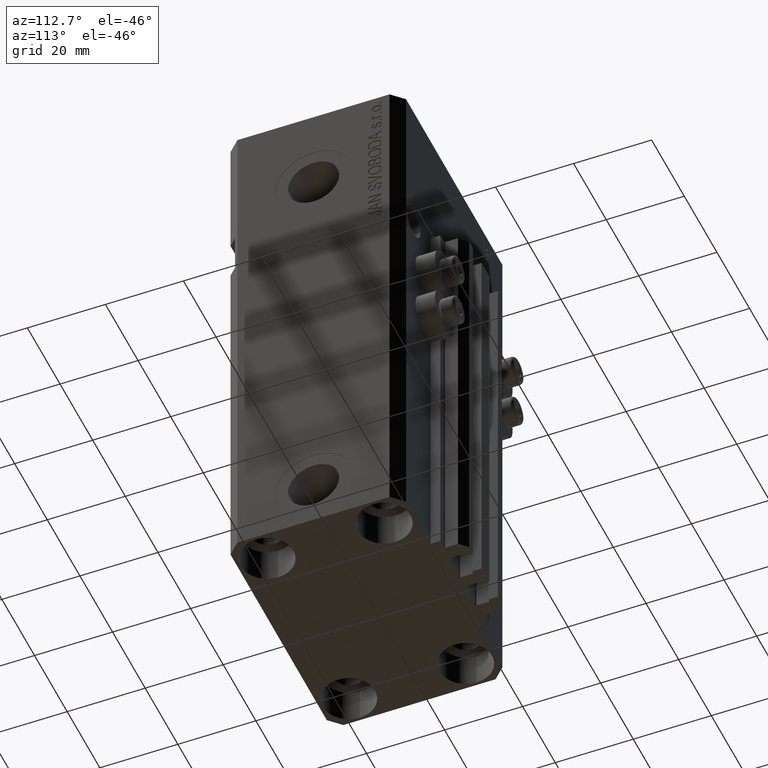
[diagram: clean part render]
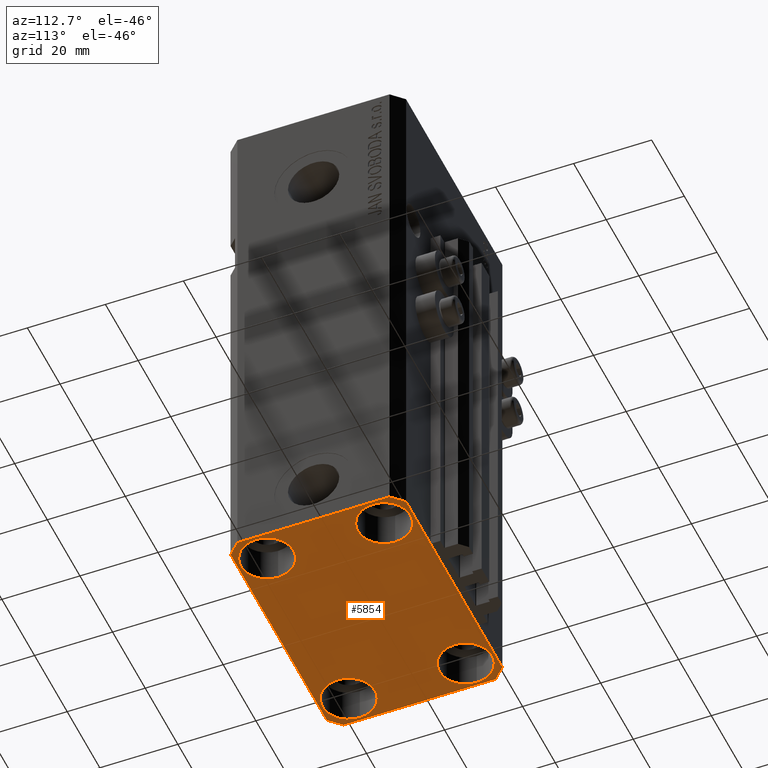
[diagram: same view with one face highlighted and labeled with its STEP entity id]
A machine part, auxiliary view. The second image highlights one B-rep face of the part: STEP entity #5854.
In plain terms, the highlighted planar face has unit normal (0, 0, 1).
Its self-contained STEP definition (entity closure, byte-faithful):
#63 = ORIENTED_EDGE ( 'NONE', *, *, #4565, .T. ) ;
#186 = LINE ( 'NONE', #22371, #3072 ) ;
#311 = ORIENTED_EDGE ( 'NONE', *, *, #10546, .F. ) ;
#1144 = EDGE_CURVE ( 'NONE', #42464, #1572, #2506, .T. ) ;
#1404 = CARTESIAN_POINT ( 'NONE',  ( 29.49999999999707967, 22.49999999999951328, -137.0000000000000000 ) ) ;
#1572 = VERTEX_POINT ( 'NONE', #8188 ) ;
#2083 = LINE ( 'NONE', #12599, #12634 ) ;
#2506 = CIRCLE ( 'NONE', #10928, 6.749999999958452790 ) ;
#2575 = CARTESIAN_POINT ( 'NONE',  ( -18.24999999995845812, -15.00000000000000000, -137.0000000000000000 ) ) ;
#2744 = CIRCLE ( 'NONE', #29399, 6.750000000022533087 ) ;
#3072 = VECTOR ( 'NONE', #33588, 1000.000000000000114 ) ;
#3112 = EDGE_CURVE ( 'NONE', #27843, #11203, #43400, .T. ) ;
#3386 = AXIS2_PLACEMENT_3D ( 'NONE', #13101, #16213, #27172 ) ;
#3497 = VERTEX_POINT ( 'NONE', #5614 ) ;
#3846 = EDGE_CURVE ( 'NONE', #42587, #45817, #27629, .T. ) ;
#4565 = EDGE_CURVE ( 'NONE', #10661, #19169, #18626, .T. ) ;
#4958 = DIRECTION ( 'NONE',  ( -0.7071067811865474617, -0.7071067811865474617, 0.000000000000000000 ) ) ;
#5001 = AXIS2_PLACEMENT_3D ( 'NONE', #6357, #21151, #35702 ) ;
#5074 = CARTESIAN_POINT ( 'NONE',  ( -32.49999999999650413, -19.49999999999949907, -137.0000000000000000 ) ) ;
#5438 = DIRECTION ( 'NONE',  ( -0.000000000000000000, -0.000000000000000000, 1.000000000000000000 ) ) ;
#5593 = DIRECTION ( 'NONE',  ( 1.000000000000000000, 0.000000000000000000, 0.000000000000000000 ) ) ;
#5614 = CARTESIAN_POINT ( 'NONE',  ( -29.49999999999650413, 22.49999999999949907, -137.0000000000000000 ) ) ;
#5821 = CARTESIAN_POINT ( 'NONE',  ( -25.00000000000000355, 15.00000000000000000, -137.0000000000000000 ) ) ;
#5854 = ADVANCED_FACE ( 'NONE', ( #10885, #46220, #28067, #24484, #39050 ), #42866, .F. ) ;
#5982 = AXIS2_PLACEMENT_3D ( 'NONE', #5821, #16099, #23481 ) ;
#6033 = EDGE_CURVE ( 'NONE', #1572, #42464, #18694, .T. ) ;
#6093 = ORIENTED_EDGE ( 'NONE', *, *, #6033, .T. ) ;
#6357 = CARTESIAN_POINT ( 'NONE',  ( 0.000000000000000000, 0.000000000000000000, -137.0000000000000000 ) ) ;
#7888 = EDGE_CURVE ( 'NONE', #13362, #3497, #15232, .T. ) ;
#8188 = CARTESIAN_POINT ( 'NONE',  ( 31.74999999995845101, 15.00000000000000888, -137.0000000000000000 ) ) ;
#8381 = VERTEX_POINT ( 'NONE', #35656 ) ;
#8545 = DIRECTION ( 'NONE',  ( -1.000000000000000000, -2.352167425053553784E-16, 0.000000000000000000 ) ) ;
#8798 = DIRECTION ( 'NONE',  ( -0.7071067811865352493, 0.7071067811865597852, 0.000000000000000000 ) ) ;
#8881 = EDGE_CURVE ( 'NONE', #19169, #10661, #19404, .T. ) ;
#9469 = CARTESIAN_POINT ( 'NONE',  ( 32.49999999999651124, -19.49999999999949196, -137.0000000000000000 ) ) ;
#9513 = DIRECTION ( 'NONE',  ( 0.000000000000000000, -1.000000000000000000, 0.000000000000000000 ) ) ;
#10288 = ORIENTED_EDGE ( 'NONE', *, *, #7888, .F. ) ;
#10306 = CARTESIAN_POINT ( 'NONE',  ( 18.25000000002253842, -15.00000000000000000, -137.0000000000000000 ) ) ;
#10546 = EDGE_CURVE ( 'NONE', #3497, #42587, #2083, .T. ) ;
#10661 = VERTEX_POINT ( 'NONE', #14463 ) ;
#10708 = CIRCLE ( 'NONE', #22100, 6.750000000041541881 ) ;
#10820 = ORIENTED_EDGE ( 'NONE', *, *, #45563, .T. ) ;
#10885 = FACE_BOUND ( 'NONE', #14953, .T. ) ;
#10928 = AXIS2_PLACEMENT_3D ( 'NONE', #46674, #21147, #35466 ) ;
#11203 = VERTEX_POINT ( 'NONE', #13655 ) ;
#11617 = EDGE_CURVE ( 'NONE', #30546, #30015, #2744, .T. ) ;
#12599 = CARTESIAN_POINT ( 'NONE',  ( -29.49999999999650413, 22.49999999999949907, -137.0000000000000000 ) ) ;
#12634 = VECTOR ( 'NONE', #4958, 1000.000000000000114 ) ;
#13101 = CARTESIAN_POINT ( 'NONE',  ( 25.00000000000000355, -15.00000000000000000, -137.0000000000000000 ) ) ;
#13113 = LINE ( 'NONE', #14988, #34322 ) ;
#13362 = VERTEX_POINT ( 'NONE', #1404 ) ;
#13511 = VERTEX_POINT ( 'NONE', #2575 ) ;
#13655 = CARTESIAN_POINT ( 'NONE',  ( 29.49999999999650413, -22.49999999999949196, -137.0000000000000000 ) ) ;
#14463 = CARTESIAN_POINT ( 'NONE',  ( 31.74999999997746869, -15.00000000000000000, -137.0000000000000000 ) ) ;
#14953 = EDGE_LOOP ( 'NONE', ( #10820, #33229 ) ) ;
#14988 = CARTESIAN_POINT ( 'NONE',  ( 29.49999999999650413, -22.49999999999949196, -137.0000000000000000 ) ) ;
#15232 = LINE ( 'NONE', #44575, #30908 ) ;
#15646 = VECTOR ( 'NONE', #40736, 1000.000000000000000 ) ;
#15877 = DIRECTION ( 'NONE',  ( -0.000000000000000000, -0.000000000000000000, 1.000000000000000000 ) ) ;
#16099 = DIRECTION ( 'NONE',  ( -0.000000000000000000, -0.000000000000000000, 1.000000000000000000 ) ) ;
#16213 = DIRECTION ( 'NONE',  ( -0.000000000000000000, -0.000000000000000000, 1.000000000000000000 ) ) ;
#17305 = CARTESIAN_POINT ( 'NONE',  ( -18.24999999997747224, 15.00000000000000000, -137.0000000000000000 ) ) ;
#18090 = EDGE_LOOP ( 'NONE', ( #10288, #37882, #25005, #28547, #44221, #26452, #18849, #311 ) ) ;
#18626 = CIRCLE ( 'NONE', #3386, 6.749999999977465137 ) ;
#18694 = CIRCLE ( 'NONE', #31664, 6.749999999958452790 ) ;
#18849 = ORIENTED_EDGE ( 'NONE', *, *, #3846, .F. ) ;
#19027 = CARTESIAN_POINT ( 'NONE',  ( 32.49999999999651124, -19.49999999999949196, -137.0000000000000000 ) ) ;
#19169 = VERTEX_POINT ( 'NONE', #10306 ) ;
#19404 = CIRCLE ( 'NONE', #35408, 6.749999999977465137 ) ;
#19405 = EDGE_LOOP ( 'NONE', ( #43337, #24502 ) ) ;
#19429 = CIRCLE ( 'NONE', #46109, 6.750000000041541881 ) ;
#20147 = DIRECTION ( 'NONE',  ( -0.000000000000000000, -0.000000000000000000, 1.000000000000000000 ) ) ;
#20153 = VECTOR ( 'NONE', #9513, 1000.000000000000000 ) ;
#21147 = DIRECTION ( 'NONE',  ( -0.000000000000000000, -0.000000000000000000, 1.000000000000000000 ) ) ;
#21151 = DIRECTION ( 'NONE',  ( 0.000000000000000000, 0.000000000000000000, 1.000000000000000000 ) ) ;
#21221 = DIRECTION ( 'NONE',  ( 1.000000000000000000, 1.176083712526788232E-16, 0.000000000000000000 ) ) ;
#21314 = DIRECTION ( 'NONE',  ( -0.000000000000000000, -0.000000000000000000, 1.000000000000000000 ) ) ;
#21539 = DIRECTION ( 'NONE',  ( 1.000000000000000000, 0.000000000000000000, 0.000000000000000000 ) ) ;
#21564 = EDGE_CURVE ( 'NONE', #30015, #30546, #33415, .T. ) ;
#22100 = AXIS2_PLACEMENT_3D ( 'NONE', #23021, #20147, #5593 ) ;
#22371 = CARTESIAN_POINT ( 'NONE',  ( -32.49999999999650413, -19.49999999999949907, -137.0000000000000000 ) ) ;
#23021 = CARTESIAN_POINT ( 'NONE',  ( -25.00000000000000355, -15.00000000000000000, -137.0000000000000000 ) ) ;
#23133 = CARTESIAN_POINT ( 'NONE',  ( -32.49999999999650413, 19.49999999999949907, -137.0000000000000000 ) ) ;
#23481 = DIRECTION ( 'NONE',  ( 1.000000000000000000, 0.000000000000000000, 0.000000000000000000 ) ) ;
#23564 = CARTESIAN_POINT ( 'NONE',  ( -25.00000000000000355, 15.00000000000000000, -137.0000000000000000 ) ) ;
#24037 = CARTESIAN_POINT ( 'NONE',  ( -29.49999999999650413, -22.49999999999949907, -137.0000000000000000 ) ) ;
#24484 = FACE_BOUND ( 'NONE', #19405, .T. ) ;
#24501 = DIRECTION ( 'NONE',  ( 1.000000000000000000, 0.000000000000000000, 0.000000000000000000 ) ) ;
#24502 = ORIENTED_EDGE ( 'NONE', *, *, #21564, .T. ) ;
#25005 = ORIENTED_EDGE ( 'NONE', *, *, #40624, .F. ) ;
#25140 = ORIENTED_EDGE ( 'NONE', *, *, #1144, .T. ) ;
#25709 = DIRECTION ( 'NONE',  ( 0.7071067811865483499, 0.7071067811865466846, 0.000000000000000000 ) ) ;
#25766 = CARTESIAN_POINT ( 'NONE',  ( -25.00000000000000355, -15.00000000000000000, -137.0000000000000000 ) ) ;
#26007 = EDGE_LOOP ( 'NONE', ( #25140, #6093 ) ) ;
#26452 = ORIENTED_EDGE ( 'NONE', *, *, #45103, .F. ) ;
#27172 = DIRECTION ( 'NONE',  ( 1.000000000000000000, 0.000000000000000000, 0.000000000000000000 ) ) ;
#27410 = VERTEX_POINT ( 'NONE', #29661 ) ;
#27629 = LINE ( 'NONE', #23133, #20153 ) ;
#27687 = VECTOR ( 'NONE', #8798, 1000.000000000000000 ) ;
#27843 = VERTEX_POINT ( 'NONE', #24037 ) ;
#27879 = EDGE_LOOP ( 'NONE', ( #41737, #63 ) ) ;
#27917 = CARTESIAN_POINT ( 'NONE',  ( -31.75000000002253842, 15.00000000000000000, -137.0000000000000000 ) ) ;
#28067 = FACE_BOUND ( 'NONE', #26007, .T. ) ;
#28547 = ORIENTED_EDGE ( 'NONE', *, *, #44965, .F. ) ;
#29166 = CARTESIAN_POINT ( 'NONE',  ( 25.00000000000000355, -15.00000000000000000, -137.0000000000000000 ) ) ;
#29399 = AXIS2_PLACEMENT_3D ( 'NONE', #23564, #5438, #24501 ) ;
#29661 = CARTESIAN_POINT ( 'NONE',  ( -31.75000000004154899, -15.00000000000000000, -137.0000000000000000 ) ) ;
#30015 = VERTEX_POINT ( 'NONE', #17305 ) ;
#30546 = VERTEX_POINT ( 'NONE', #27917 ) ;
#30908 = VECTOR ( 'NONE', #8545, 1000.000000000000000 ) ;
#31664 = AXIS2_PLACEMENT_3D ( 'NONE', #42108, #15877, #38290 ) ;
#31729 = CARTESIAN_POINT ( 'NONE',  ( -29.49999999999650413, -22.49999999999949907, -137.0000000000000000 ) ) ;
#32053 = DIRECTION ( 'NONE',  ( 1.000000000000000000, 0.000000000000000000, 0.000000000000000000 ) ) ;
#33229 = ORIENTED_EDGE ( 'NONE', *, *, #41138, .T. ) ;
#33415 = CIRCLE ( 'NONE', #5982, 6.750000000022533087 ) ;
#33588 = DIRECTION ( 'NONE',  ( 0.7071067811865474617, -0.7071067811865474617, 0.000000000000000000 ) ) ;
#34322 = VECTOR ( 'NONE', #25709, 1000.000000000000000 ) ;
#34337 = LINE ( 'NONE', #45065, #27687 ) ;
#35408 = AXIS2_PLACEMENT_3D ( 'NONE', #29166, #21314, #21539 ) ;
#35466 = DIRECTION ( 'NONE',  ( 1.000000000000000000, 0.000000000000000000, 0.000000000000000000 ) ) ;
#35656 = CARTESIAN_POINT ( 'NONE',  ( 32.49999999999702993, 19.49999999999945999, -137.0000000000000000 ) ) ;
#35702 = DIRECTION ( 'NONE',  ( 1.000000000000000000, 0.000000000000000000, -0.000000000000000000 ) ) ;
#37358 = EDGE_CURVE ( 'NONE', #8381, #13362, #34337, .T. ) ;
#37882 = ORIENTED_EDGE ( 'NONE', *, *, #37358, .F. ) ;
#37973 = CARTESIAN_POINT ( 'NONE',  ( -32.49999999999650413, 19.49999999999949907, -137.0000000000000000 ) ) ;
#38290 = DIRECTION ( 'NONE',  ( 1.000000000000000000, 0.000000000000000000, 0.000000000000000000 ) ) ;
#39050 = FACE_OUTER_BOUND ( 'NONE', #18090, .T. ) ;
#40624 = EDGE_CURVE ( 'NONE', #41577, #8381, #40979, .T. ) ;
#40736 = DIRECTION ( 'NONE',  ( 1.334402673828349134E-14, 1.000000000000000000, 0.000000000000000000 ) ) ;
#40979 = LINE ( 'NONE', #19027, #15646 ) ;
#41138 = EDGE_CURVE ( 'NONE', #13511, #27410, #19429, .T. ) ;
#41577 = VERTEX_POINT ( 'NONE', #9469 ) ;
#41737 = ORIENTED_EDGE ( 'NONE', *, *, #8881, .T. ) ;
#42108 = CARTESIAN_POINT ( 'NONE',  ( 24.99999999999999645, 15.00000000000000888, -137.0000000000000000 ) ) ;
#42464 = VERTEX_POINT ( 'NONE', #43299 ) ;
#42587 = VERTEX_POINT ( 'NONE', #37973 ) ;
#42866 = PLANE ( 'NONE',  #5001 ) ;
#43023 = DIRECTION ( 'NONE',  ( -0.000000000000000000, -0.000000000000000000, 1.000000000000000000 ) ) ;
#43299 = CARTESIAN_POINT ( 'NONE',  ( 18.25000000004154543, 15.00000000000000888, -137.0000000000000000 ) ) ;
#43337 = ORIENTED_EDGE ( 'NONE', *, *, #11617, .T. ) ;
#43400 = LINE ( 'NONE', #31729, #46046 ) ;
#44221 = ORIENTED_EDGE ( 'NONE', *, *, #3112, .F. ) ;
#44575 = CARTESIAN_POINT ( 'NONE',  ( 29.49999999999707967, 22.49999999999951328, -137.0000000000000000 ) ) ;
#44965 = EDGE_CURVE ( 'NONE', #11203, #41577, #13113, .T. ) ;
#45065 = CARTESIAN_POINT ( 'NONE',  ( 32.49999999999702993, 19.49999999999945999, -137.0000000000000000 ) ) ;
#45103 = EDGE_CURVE ( 'NONE', #45817, #27843, #186, .T. ) ;
#45563 = EDGE_CURVE ( 'NONE', #27410, #13511, #10708, .T. ) ;
#45817 = VERTEX_POINT ( 'NONE', #5074 ) ;
#46046 = VECTOR ( 'NONE', #21221, 1000.000000000000000 ) ;
#46109 = AXIS2_PLACEMENT_3D ( 'NONE', #25766, #43023, #32053 ) ;
#46220 = FACE_BOUND ( 'NONE', #27879, .T. ) ;
#46674 = CARTESIAN_POINT ( 'NONE',  ( 24.99999999999999645, 15.00000000000000888, -137.0000000000000000 ) ) ;